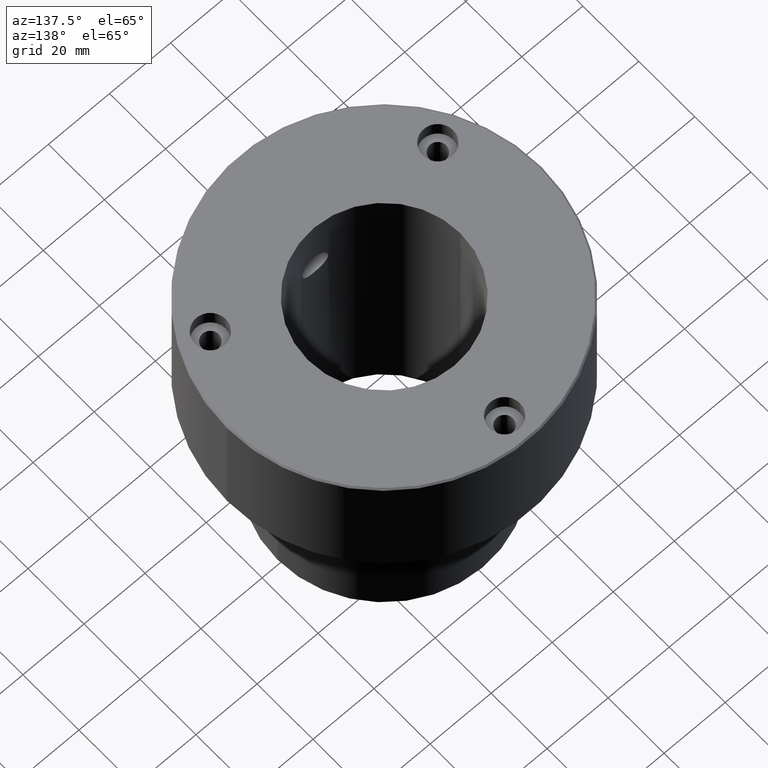
[diagram: clean part render]
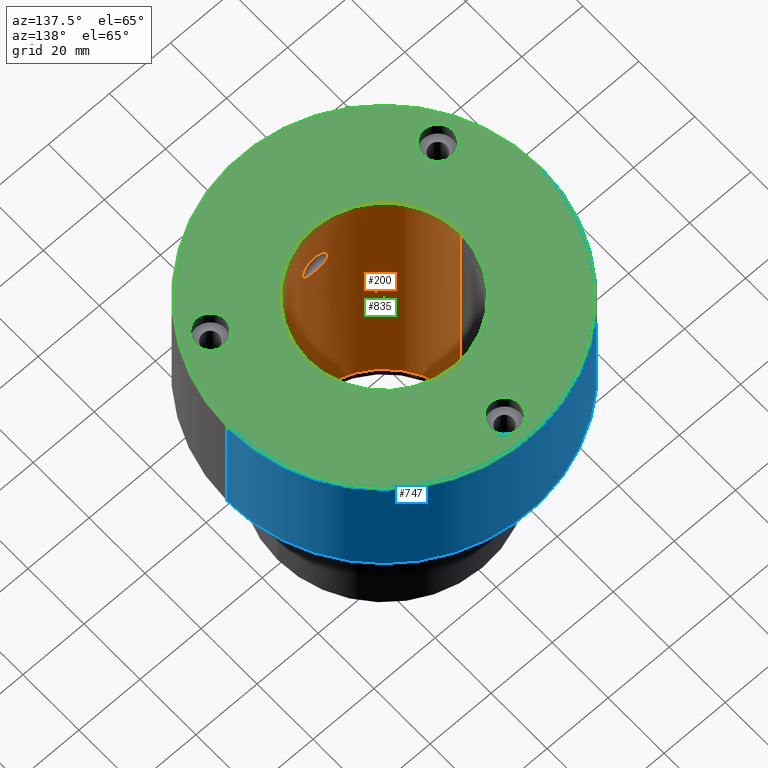
[diagram: same view with three faces highlighted in distinct colors, each labeled with its STEP entity id]
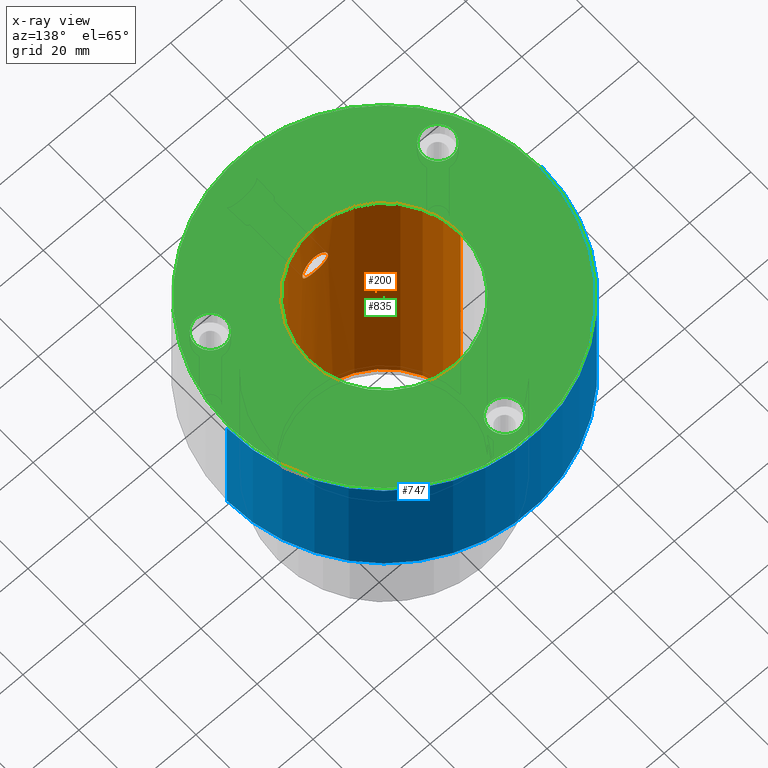
[diagram: x-ray of the same camera — body ghosted, the three highlighted faces saturated]
A machine part, auxiliary view with three faces highlighted in distinct colors.
The next image is the same camera in x-ray (body ghosted, the three faces saturated) — at least one of them is partly hidden behind the body in this view.
Their STEP definitions:

[orange] entity #200 — the highlighted cylindrical surface (partial cylindrical patch) has radius 25 mm, axis along (-0, -0, -1).
#2 = CARTESIAN_POINT ( 'NONE',  ( -2.573222320709973587, -24.86828951889739514, -17.89843385853933810 ) ) ;
#15 = CARTESIAN_POINT ( 'NONE',  ( -2.789602832603612637, -24.84464189656425859, -24.42354531606904899 ) ) ;
#18 = EDGE_CURVE ( 'NONE', #1164, #898, #1170, .T. ) ;
#59 = DIRECTION ( 'NONE',  ( 0.000000000000000000, 0.000000000000000000, -1.000000000000000000 ) ) ;
#69 = CARTESIAN_POINT ( 'NONE',  ( 0.000000000000000000, 0.000000000000000000, 0.000000000000000000 ) ) ;
#70 = CARTESIAN_POINT ( 'NONE',  ( 3.352582055017099272, -24.77466295798508256, -18.67832181482093290 ) ) ;
#71 = AXIS2_PLACEMENT_3D ( 'NONE', #1205, #59, #630 ) ;
#79 = DIRECTION ( 'NONE',  ( -0.000000000000000000, -0.000000000000000000, -1.000000000000000000 ) ) ;
#85 = CARTESIAN_POINT ( 'NONE',  ( 0.000000000000000000, -25.00000000000000000, -25.46640000000000725 ) ) ;
#111 = CARTESIAN_POINT ( 'NONE',  ( -3.177273416892531177, -24.79804525696520301, -24.03535589667136563 ) ) ;
#114 = DIRECTION ( 'NONE',  ( -0.000000000000000000, -0.000000000000000000, -1.000000000000000000 ) ) ;
#118 = CARTESIAN_POINT ( 'NONE',  ( -3.657551204455514959, -24.73148071308412455, -19.13436812954638810 ) ) ;
#183 = CARTESIAN_POINT ( 'NONE',  ( 5.163598754942028148E-16, -25.00000000000000000, -17.03359999999999630 ) ) ;
#200 = ADVANCED_FACE ( 'NONE', ( #457, #361 ), #1234, .F. ) ;
#209 = CARTESIAN_POINT ( 'NONE',  ( -4.001080031995797093, -24.67798176958861234, -22.60850050508463482 ) ) ;
#211 = LINE ( 'NONE', #984, #704 ) ;
#281 = CARTESIAN_POINT ( 'NONE',  ( 2.785149779739970022, -24.84516107233461923, -18.07225963039122973 ) ) ;
#289 = CARTESIAN_POINT ( 'NONE',  ( -3.789909672597093770, -24.71129317369161171, -23.11835481595592157 ) ) ;
#292 = CARTESIAN_POINT ( 'NONE',  ( 3.789420792215004052, -24.71136645075524996, -23.11914407841852892 ) ) ;
#296 = CARTESIAN_POINT ( 'NONE',  ( -4.080839073309147302, -24.66474678609008819, -20.15440089352773612 ) ) ;
#303 = CARTESIAN_POINT ( 'NONE',  ( -4.082358558956740602, -24.66449459381453835, -22.33999767720903762 ) ) ;
#306 = DIRECTION ( 'NONE',  ( -0.000000000000000000, -0.000000000000000000, -1.000000000000000000 ) ) ;
#307 = ORIENTED_EDGE ( 'NONE', *, *, #18, .T. ) ;
#308 = CARTESIAN_POINT ( 'NONE',  ( -4.188542541352179960, -24.64668523236889897, -20.69349633996487015 ) ) ;
#311 = B_SPLINE_CURVE_WITH_KNOTS ( 'NONE', 3,
 ( #609, #987, #979, #971, #965, #595, #1084, #2, #402, #393, #615, #118, #993, #1152, #296, #308, #699, #1078, #514, #303, #209, #289, #600, #686, #111, #15, #693, #893, #508, #407, #794, #413, #799, #1181 ),
 .UNSPECIFIED., .F., .F.,
 ( 4, 2, 2, 2, 2, 2, 2, 2, 2, 2, 2, 2, 2, 2, 2, 2, 4 ),
 ( 0.01320600312613960658, 0.01403117198375048932, 0.01485634084136137206, 0.01568150969897225480, 0.01650667855658313754, 0.01733184741419402028, 0.01815701627180490302, 0.01898218512941578576, 0.01980735398702666850, 0.02063252284463755123, 0.02145769170224843397, 0.02228286055985931671, 0.02310802941747019945, 0.02393319827508108219, 0.02475836713269196493, 0.02558353599030284767, 0.02640870484791373041 ),
 .UNSPECIFIED. ) ;
#361 = FACE_OUTER_BOUND ( 'NONE', #662, .T. ) ;
#366 = CARTESIAN_POINT ( 'NONE',  ( 2.571603499046061447, -24.86844906153570989, -24.60272099521346334 ) ) ;
#371 = DIRECTION ( 'NONE',  ( -1.000000000000000000, 0.000000000000000000, 0.000000000000000000 ) ) ;
#372 = CARTESIAN_POINT ( 'NONE',  ( 0.5534851188594950289, -24.99533014651275664, -25.43895744880870069 ) ) ;
#374 = VERTEX_POINT ( 'NONE', #403 ) ;
#378 = CARTESIAN_POINT ( 'NONE',  ( 1.093099341831749172, -24.97755009481224775, -25.33152472902171581 ) ) ;
#384 = CARTESIAN_POINT ( 'NONE',  ( 4.216294869757237329, -24.64189232957908970, -21.52716252381245710 ) ) ;
#386 = ORIENTED_EDGE ( 'NONE', *, *, #908, .F. ) ;
#393 = CARTESIAN_POINT ( 'NONE',  ( -3.174021241467367638, -24.79846643849410981, -18.46089050694146749 ) ) ;
#402 = CARTESIAN_POINT ( 'NONE',  ( -2.785157193346087023, -24.84514535982346217, -18.07251010797707735 ) ) ;
#403 = CARTESIAN_POINT ( 'NONE',  ( 5.163598754942028148E-16, -25.00000000000000000, -17.03359999999999630 ) ) ;
#407 = CARTESIAN_POINT ( 'NONE',  ( -1.365922125421332511, -24.96394961135199964, -25.24845676394320648 ) ) ;
#413 = CARTESIAN_POINT ( 'NONE',  ( -0.5546946996464188206, -24.99533018735855450, -25.43896704401492670 ) ) ;
#425 = CARTESIAN_POINT ( 'NONE',  ( 25.00000000000000000, 3.061616997868383043E-15, 0.000000000000000000 ) ) ;
#433 = ORIENTED_EDGE ( 'NONE', *, *, #552, .T. ) ;
#457 = FACE_BOUND ( 'NONE', #811, .T. ) ;
#486 = CARTESIAN_POINT ( 'NONE',  ( 4.189438460589419932, -24.64653377676202695, -21.80109762094440740 ) ) ;
#508 = CARTESIAN_POINT ( 'NONE',  ( -1.872884506012573613, -24.93104143588820776, -25.03757222676701488 ) ) ;
#511 = EDGE_CURVE ( 'NONE', #1164, #969, #1037, .T. ) ;
#514 = CARTESIAN_POINT ( 'NONE',  ( -4.189398213030527174, -24.64653905896020092, -21.80017174851593609 ) ) ;
#526 = VECTOR ( 'NONE', #306, 1000.000000000000000 ) ;
#552 = EDGE_CURVE ( 'NONE', #898, #1244, #958, .T. ) ;
#556 = CARTESIAN_POINT ( 'NONE',  ( -25.00000000000000000, 0.000000000000000000, 0.000000000000000000 ) ) ;
#562 = CARTESIAN_POINT ( 'NONE',  ( 3.176198147016892737, -24.79818488864249559, -24.03660333964332452 ) ) ;
#588 = CARTESIAN_POINT ( 'NONE',  ( 4.188953245402470493, -24.64661566191788467, -20.69608042869629827 ) ) ;
#595 = CARTESIAN_POINT ( 'NONE',  ( -1.867683453845454755, -24.93143433690384470, -17.45985074833685502 ) ) ;
#600 = CARTESIAN_POINT ( 'NONE',  ( -3.660610892758011214, -24.73102916298913811, -23.36044143906419990 ) ) ;
#609 = CARTESIAN_POINT ( 'NONE',  ( 5.163598754942028148E-16, -25.00000000000000000, -17.03359999999999630 ) ) ;
#615 = CARTESIAN_POINT ( 'NONE',  ( -3.351930816617768816, -24.77475285195544075, -18.67742564245439496 ) ) ;
#630 = DIRECTION ( 'NONE',  ( -1.000000000000000000, 0.000000000000000000, 0.000000000000000000 ) ) ;
#642 = CARTESIAN_POINT ( 'NONE',  ( 0.000000000000000000, 0.000000000000000000, 0.000000000000000000 ) ) ;
#654 = DIRECTION ( 'NONE',  ( -1.000000000000000000, 0.000000000000000000, 0.000000000000000000 ) ) ;
#662 = EDGE_LOOP ( 'NONE', ( #703, #307, #433, #386 ) ) ;
#670 = CARTESIAN_POINT ( 'NONE',  ( 2.572709684471875313, -24.86832656702240740, -17.89820541019203759 ) ) ;
#673 = CARTESIAN_POINT ( 'NONE',  ( 3.350546938136419683, -24.77494827881642081, -23.82462623794197043 ) ) ;
#686 = CARTESIAN_POINT ( 'NONE',  ( -3.354633329992206203, -24.77438820213534854, -23.81913806503335707 ) ) ;
#693 = CARTESIAN_POINT ( 'NONE',  ( -2.577720491008726800, -24.86783159792549469, -24.59820804518534487 ) ) ;
#699 = CARTESIAN_POINT ( 'NONE',  ( -4.216231918069407669, -24.64190310105671955, -20.96891348818029144 ) ) ;
#701 = CARTESIAN_POINT ( 'NONE',  ( 0.000000000000000000, -25.00000000000000000, -25.46640000000000725 ) ) ;
#702 = AXIS2_PLACEMENT_3D ( 'NONE', #642, #912, #654 ) ;
#703 = ORIENTED_EDGE ( 'NONE', *, *, #511, .F. ) ;
#704 = VECTOR ( 'NONE', #114, 1000.000000000000000 ) ;
#706 = CARTESIAN_POINT ( 'NONE',  ( -25.00000000000000000, 0.000000000000000000, -95.00000000000000000 ) ) ;
#723 = EDGE_CURVE ( 'NONE', #806, #374, #1089, .T. ) ;
#753 = CARTESIAN_POINT ( 'NONE',  ( 3.999816144338788071, -24.67818495383058419, -22.61193991712017137 ) ) ;
#766 = CARTESIAN_POINT ( 'NONE',  ( 4.001238937977825927, -24.67795725127592021, -19.89182722783715107 ) ) ;
#772 = CARTESIAN_POINT ( 'NONE',  ( 4.216504520080975205, -24.64185645691993543, -20.97604539521298861 ) ) ;
#778 = CARTESIAN_POINT ( 'NONE',  ( 2.113613258529830841, -24.91155439300947094, -24.90875957414777631 ) ) ;
#794 = CARTESIAN_POINT ( 'NONE',  ( -1.099253878684166130, -24.97730686633552821, -25.33004558992381661 ) ) ;
#799 = CARTESIAN_POINT ( 'NONE',  ( -0.2790545370033101769, -25.00000000000000355, -25.46640000000001436 ) ) ;
#806 = VERTEX_POINT ( 'NONE', #701 ) ;
#811 = EDGE_LOOP ( 'NONE', ( #1071, #1236 ) ) ;
#863 = CARTESIAN_POINT ( 'NONE',  ( 3.789500920088971547, -24.71135710379412487, -19.38071428227805271 ) ) ;
#868 = CARTESIAN_POINT ( 'NONE',  ( 4.081010666530438868, -24.66471921112831467, -22.34565283851284079 ) ) ;
#879 = AXIS2_PLACEMENT_3D ( 'NONE', #69, #79, #371 ) ;
#893 = CARTESIAN_POINT ( 'NONE',  ( -2.116339544248175830, -24.91133874856988228, -24.90735518880263655 ) ) ;
#898 = VERTEX_POINT ( 'NONE', #1074 ) ;
#908 = EDGE_CURVE ( 'NONE', #969, #1244, #211, .T. ) ;
#912 = DIRECTION ( 'NONE',  ( 0.000000000000000000, 0.000000000000000000, -1.000000000000000000 ) ) ;
#936 = CARTESIAN_POINT ( 'NONE',  ( 3.657636990639186791, -24.73146624771950641, -19.13457409289371114 ) ) ;
#947 = CARTESIAN_POINT ( 'NONE',  ( 25.00000000000000000, 3.061616997868383043E-15, 0.000000000000000000 ) ) ;
#950 = CARTESIAN_POINT ( 'NONE',  ( 3.177741575050738287, -24.79800488926540325, -18.46485159561991196 ) ) ;
#958 = CIRCLE ( 'NONE', #71, 25.00000000000000000 ) ;
#961 = CARTESIAN_POINT ( 'NONE',  ( 1.359562763135050645, -24.96431268227063427, -17.24926987722700034 ) ) ;
#965 = CARTESIAN_POINT ( 'NONE',  ( -1.360179360026400497, -24.96426589522861761, -17.24957690460009729 ) ) ;
#969 = VERTEX_POINT ( 'NONE', #556 ) ;
#971 = CARTESIAN_POINT ( 'NONE',  ( -1.094777242392741323, -24.97750782868677177, -17.16872763357598330 ) ) ;
#979 = CARTESIAN_POINT ( 'NONE',  ( -0.5494184517092979281, -24.99545106429351193, -17.06031496358990296 ) ) ;
#984 = CARTESIAN_POINT ( 'NONE',  ( -25.00000000000000000, 0.000000000000000000, 0.000000000000000000 ) ) ;
#987 = CARTESIAN_POINT ( 'NONE',  ( -0.2753736551646883135, -24.99999999999999645, -17.03359999999999275 ) ) ;
#993 = CARTESIAN_POINT ( 'NONE',  ( -3.787263450962607969, -24.71170153888022369, -19.37617669261775077 ) ) ;
#1030 = CARTESIAN_POINT ( 'NONE',  ( 2.788049844071097016, -24.84481810171661564, -24.42492848873796518 ) ) ;
#1037 = CIRCLE ( 'NONE', #702, 25.00000000000000000 ) ;
#1048 = CARTESIAN_POINT ( 'NONE',  ( 0.5552478292391550552, -24.99530098410326318, -17.06121199652787723 ) ) ;
#1052 = CARTESIAN_POINT ( 'NONE',  ( 1.869645711962733881, -24.93130047784954328, -17.46071545883578935 ) ) ;
#1071 = ORIENTED_EDGE ( 'NONE', *, *, #723, .T. ) ;
#1074 = CARTESIAN_POINT ( 'NONE',  ( 25.00000000000000000, 3.061616997868383043E-15, -95.00000000000000000 ) ) ;
#1078 = CARTESIAN_POINT ( 'NONE',  ( -4.216566560592522883, -24.64184584135102796, -21.52602111181422728 ) ) ;
#1084 = CARTESIAN_POINT ( 'NONE',  ( -2.113533608170574674, -24.91156904722453902, -17.59111432270438513 ) ) ;
#1089 = B_SPLINE_CURVE_WITH_KNOTS ( 'NONE', 3,
 ( #85, #1247, #372, #378, #1229, #1239, #778, #366, #1030, #562, #673, #1155, #292, #753, #868, #486, #384, #772, #588, #1252, #766, #863, #936, #70, #950, #281, #670, #1149, #1052, #961, #1138, #1048, #1132, #183 ),
 .UNSPECIFIED., .F., .F.,
 ( 4, 2, 2, 2, 2, 2, 2, 2, 2, 2, 2, 2, 2, 2, 2, 2, 4 ),
 ( 0.000000000000000000, 0.0008253751953837256284, 0.001650750390767451257, 0.002476125586151177102, 0.003301500781534902514, 0.004126875976918627925, 0.004952251172302354204, 0.005777626367686078748, 0.006603001563069803292, 0.007428376758453528704, 0.008253751953837254116, 0.009079127149220978660, 0.009904502344604704939, 0.01072987753998843122, 0.01155525273537215750, 0.01238062793075588204, 0.01320600312613960658 ),
 .UNSPECIFIED. ) ;
#1132 = CARTESIAN_POINT ( 'NONE',  ( 0.2754425137821490122, -24.99999999999999645, -17.03359999999999275 ) ) ;
#1138 = CARTESIAN_POINT ( 'NONE',  ( 1.096695326180635810, -24.97740240295859593, -17.16937450242730634 ) ) ;
#1149 = CARTESIAN_POINT ( 'NONE',  ( 2.116465903479380906, -24.91130412973308239, -17.59296101029117665 ) ) ;
#1152 = CARTESIAN_POINT ( 'NONE',  ( -3.999650605956602156, -24.67821615157715343, -19.88714517847382268 ) ) ;
#1155 = CARTESIAN_POINT ( 'NONE',  ( 3.658773400904637541, -24.73130817816795002, -23.36382171684068609 ) ) ;
#1164 = VERTEX_POINT ( 'NONE', #947 ) ;
#1170 = LINE ( 'NONE', #425, #526 ) ;
#1181 = CARTESIAN_POINT ( 'NONE',  ( 0.000000000000000000, -25.00000000000000000, -25.46640000000000725 ) ) ;
#1205 = CARTESIAN_POINT ( 'NONE',  ( 0.000000000000000000, 0.000000000000000000, -95.00000000000000000 ) ) ;
#1229 = CARTESIAN_POINT ( 'NONE',  ( 1.361186421366149313, -24.96422595710813042, -25.25019430947453714 ) ) ;
#1233 = EDGE_CURVE ( 'NONE', #374, #806, #311, .T. ) ;
#1234 = CYLINDRICAL_SURFACE ( 'NONE', #879, 25.00000000000000000 ) ;
#1236 = ORIENTED_EDGE ( 'NONE', *, *, #1233, .T. ) ;
#1239 = CARTESIAN_POINT ( 'NONE',  ( 1.871608554563108040, -24.93115495779827739, -25.03833266830545767 ) ) ;
#1244 = VERTEX_POINT ( 'NONE', #706 ) ;
#1247 = CARTESIAN_POINT ( 'NONE',  ( 0.2791243160444553117, -25.00000000000000000, -25.46640000000000725 ) ) ;
#1252 = CARTESIAN_POINT ( 'NONE',  ( 4.081045843858354338, -24.66471280389840715, -20.15491050412871488 ) ) ;

[blue] entity #747 — the highlighted cylindrical surface (partial cylindrical patch) has radius 51.5 mm, axis along (-0, -0, 1).
#9 = DIRECTION ( 'NONE',  ( 0.000000000000000000, 0.000000000000000000, -1.000000000000000000 ) ) ;
#76 = DIRECTION ( 'NONE',  ( 1.000000000000000000, 0.000000000000000000, 0.000000000000000000 ) ) ;
#172 = CARTESIAN_POINT ( 'NONE',  ( 0.000000000000000000, 0.000000000000000000, 0.000000000000000000 ) ) ;
#173 = VECTOR ( 'NONE', #749, 1000.000000000000000 ) ;
#184 = ORIENTED_EDGE ( 'NONE', *, *, #226, .F. ) ;
#208 = EDGE_CURVE ( 'NONE', #282, #401, #1098, .T. ) ;
#226 = EDGE_CURVE ( 'NONE', #282, #1104, #1221, .T. ) ;
#282 = VERTEX_POINT ( 'NONE', #756 ) ;
#284 = CARTESIAN_POINT ( 'NONE',  ( 51.50000000000000000, 0.000000000000000000, -0.5000000000000004441 ) ) ;
#315 = EDGE_CURVE ( 'NONE', #419, #1104, #1140, .T. ) ;
#335 = AXIS2_PLACEMENT_3D ( 'NONE', #1127, #485, #837 ) ;
#401 = VERTEX_POINT ( 'NONE', #408 ) ;
#408 = CARTESIAN_POINT ( 'NONE',  ( -51.50000000000000000, 6.306931015608868807E-15, -42.00000000000000000 ) ) ;
#414 = CARTESIAN_POINT ( 'NONE',  ( -51.50000000000000000, 6.306931015608868807E-15, -0.5000000000000004441 ) ) ;
#419 = VERTEX_POINT ( 'NONE', #414 ) ;
#475 = EDGE_LOOP ( 'NONE', ( #773, #656, #992, #184 ) ) ;
#478 = CARTESIAN_POINT ( 'NONE',  ( 51.50000000000000000, 0.000000000000000000, 0.000000000000000000 ) ) ;
#485 = DIRECTION ( 'NONE',  ( -0.000000000000000000, -0.000000000000000000, 1.000000000000000000 ) ) ;
#492 = CYLINDRICAL_SURFACE ( 'NONE', #1217, 51.50000000000000000 ) ;
#559 = EDGE_CURVE ( 'NONE', #401, #419, #1026, .T. ) ;
#656 = ORIENTED_EDGE ( 'NONE', *, *, #559, .T. ) ;
#659 = FACE_OUTER_BOUND ( 'NONE', #475, .T. ) ;
#747 = ADVANCED_FACE ( 'NONE', ( #659 ), #492, .T. ) ;
#749 = DIRECTION ( 'NONE',  ( -0.000000000000000000, -0.000000000000000000, 1.000000000000000000 ) ) ;
#756 = CARTESIAN_POINT ( 'NONE',  ( 51.50000000000000000, 0.000000000000000000, -42.00000000000000000 ) ) ;
#762 = AXIS2_PLACEMENT_3D ( 'NONE', #867, #9, #1073 ) ;
#773 = ORIENTED_EDGE ( 'NONE', *, *, #208, .T. ) ;
#837 = DIRECTION ( 'NONE',  ( 1.000000000000000000, 0.000000000000000000, 0.000000000000000000 ) ) ;
#867 = CARTESIAN_POINT ( 'NONE',  ( 0.000000000000000000, 0.000000000000000000, -0.5000000000000004441 ) ) ;
#916 = CARTESIAN_POINT ( 'NONE',  ( -51.50000000000000000, 6.306931015608868807E-15, 0.000000000000000000 ) ) ;
#944 = DIRECTION ( 'NONE',  ( -0.000000000000000000, -0.000000000000000000, 1.000000000000000000 ) ) ;
#955 = DIRECTION ( 'NONE',  ( -0.000000000000000000, -0.000000000000000000, 1.000000000000000000 ) ) ;
#980 = VECTOR ( 'NONE', #955, 1000.000000000000000 ) ;
#992 = ORIENTED_EDGE ( 'NONE', *, *, #315, .T. ) ;
#1026 = LINE ( 'NONE', #916, #173 ) ;
#1073 = DIRECTION ( 'NONE',  ( 1.000000000000000000, 0.000000000000000000, 0.000000000000000000 ) ) ;
#1098 = CIRCLE ( 'NONE', #335, 51.50000000000000000 ) ;
#1104 = VERTEX_POINT ( 'NONE', #284 ) ;
#1127 = CARTESIAN_POINT ( 'NONE',  ( 0.000000000000000000, 0.000000000000000000, -42.00000000000000000 ) ) ;
#1140 = CIRCLE ( 'NONE', #762, 51.50000000000000000 ) ;
#1217 = AXIS2_PLACEMENT_3D ( 'NONE', #172, #944, #76 ) ;
#1221 = LINE ( 'NONE', #478, #980 ) ;

[green] entity #835 — the highlighted planar face has unit normal (0, -0, 1).
#4 = FACE_BOUND ( 'NONE', #288, .T. ) ;
#13 = EDGE_LOOP ( 'NONE', ( #406, #294 ) ) ;
#48 = AXIS2_PLACEMENT_3D ( 'NONE', #1029, #383, #561 ) ;
#51 = CIRCLE ( 'NONE', #89, 5.000000000000000888 ) ;
#72 = AXIS2_PLACEMENT_3D ( 'NONE', #890, #1175, #516 ) ;
#78 = CARTESIAN_POINT ( 'NONE',  ( 32.23909236273075862, -21.50000000000015987, 0.000000000000000000 ) ) ;
#87 = ORIENTED_EDGE ( 'NONE', *, *, #1077, .F. ) ;
#89 = AXIS2_PLACEMENT_3D ( 'NONE', #1062, #310, #597 ) ;
#90 = ORIENTED_EDGE ( 'NONE', *, *, #655, .F. ) ;
#98 = CARTESIAN_POINT ( 'NONE',  ( -51.00000000000001421, 0.000000000000000000, 0.000000000000000000 ) ) ;
#99 = CARTESIAN_POINT ( 'NONE',  ( 0.000000000000000000, 0.000000000000000000, 0.000000000000000000 ) ) ;
#101 = ORIENTED_EDGE ( 'NONE', *, *, #933, .F. ) ;
#105 = FACE_BOUND ( 'NONE', #342, .T. ) ;
#132 = AXIS2_PLACEMENT_3D ( 'NONE', #658, #359, #652 ) ;
#139 = DIRECTION ( 'NONE',  ( 1.000000000000000000, 0.000000000000000000, 0.000000000000000000 ) ) ;
#158 = ORIENTED_EDGE ( 'NONE', *, *, #293, .T. ) ;
#161 = EDGE_CURVE ( 'NONE', #581, #1216, #191, .T. ) ;
#164 = DIRECTION ( 'NONE',  ( 1.000000000000000000, 0.000000000000000000, 0.000000000000000000 ) ) ;
#168 = CIRCLE ( 'NONE', #132, 5.000000000000004441 ) ;
#170 = CIRCLE ( 'NONE', #356, 51.00000000000001421 ) ;
#182 = EDGE_CURVE ( 'NONE', #1225, #469, #170, .T. ) ;
#191 = CIRCLE ( 'NONE', #722, 5.000000000000004441 ) ;
#196 = CARTESIAN_POINT ( 'NONE',  ( -42.23909236273090784, -21.49999999999991118, 0.000000000000000000 ) ) ;
#220 = DIRECTION ( 'NONE',  ( 1.000000000000000000, 0.000000000000000000, 0.000000000000000000 ) ) ;
#262 = EDGE_CURVE ( 'NONE', #469, #1225, #358, .T. ) ;
#267 = DIRECTION ( 'NONE',  ( 1.000000000000000000, 0.000000000000000000, 0.000000000000000000 ) ) ;
#285 = DIRECTION ( 'NONE',  ( 0.000000000000000000, 0.000000000000000000, -1.000000000000000000 ) ) ;
#288 = EDGE_LOOP ( 'NONE', ( #302, #87 ) ) ;
#293 = EDGE_CURVE ( 'NONE', #969, #1164, #484, .T. ) ;
#294 = ORIENTED_EDGE ( 'NONE', *, *, #182, .T. ) ;
#302 = ORIENTED_EDGE ( 'NONE', *, *, #161, .F. ) ;
#310 = DIRECTION ( 'NONE',  ( -0.000000000000000000, -0.000000000000000000, 1.000000000000000000 ) ) ;
#329 = CARTESIAN_POINT ( 'NONE',  ( -5.000000000000000888, 43.00000000000000000, 0.000000000000000000 ) ) ;
#342 = EDGE_LOOP ( 'NONE', ( #158, #754 ) ) ;
#356 = AXIS2_PLACEMENT_3D ( 'NONE', #765, #771, #164 ) ;
#358 = CIRCLE ( 'NONE', #48, 51.00000000000001421 ) ;
#359 = DIRECTION ( 'NONE',  ( -0.000000000000000000, -0.000000000000000000, 1.000000000000000000 ) ) ;
#365 = DIRECTION ( 'NONE',  ( -0.000000000000000000, -0.000000000000000000, 1.000000000000000000 ) ) ;
#383 = DIRECTION ( 'NONE',  ( -0.000000000000000000, -0.000000000000000000, 1.000000000000000000 ) ) ;
#406 = ORIENTED_EDGE ( 'NONE', *, *, #262, .T. ) ;
#415 = DIRECTION ( 'NONE',  ( 0.000000000000000000, -0.000000000000000000, 1.000000000000000000 ) ) ;
#445 = CIRCLE ( 'NONE', #72, 5.000000000000004441 ) ;
#465 = CIRCLE ( 'NONE', #839, 5.000000000000004441 ) ;
#469 = VERTEX_POINT ( 'NONE', #98 ) ;
#484 = CIRCLE ( 'NONE', #1058, 25.00000000000000000 ) ;
#505 = VERTEX_POINT ( 'NONE', #1210 ) ;
#511 = EDGE_CURVE ( 'NONE', #1164, #969, #1037, .T. ) ;
#516 = DIRECTION ( 'NONE',  ( 1.000000000000000000, 0.000000000000000000, 0.000000000000000000 ) ) ;
#518 = VERTEX_POINT ( 'NONE', #650 ) ;
#522 = AXIS2_PLACEMENT_3D ( 'NONE', #99, #415, #220 ) ;
#556 = CARTESIAN_POINT ( 'NONE',  ( -25.00000000000000000, 0.000000000000000000, 0.000000000000000000 ) ) ;
#561 = DIRECTION ( 'NONE',  ( 1.000000000000000000, 0.000000000000000000, 0.000000000000000000 ) ) ;
#580 = ORIENTED_EDGE ( 'NONE', *, *, #782, .F. ) ;
#581 = VERTEX_POINT ( 'NONE', #727 ) ;
#586 = CIRCLE ( 'NONE', #1001, 5.000000000000000888 ) ;
#596 = DIRECTION ( 'NONE',  ( -1.000000000000000000, 0.000000000000000000, 0.000000000000000000 ) ) ;
#597 = DIRECTION ( 'NONE',  ( 1.000000000000000000, 0.000000000000000000, 0.000000000000000000 ) ) ;
#604 = FACE_BOUND ( 'NONE', #735, .T. ) ;
#642 = CARTESIAN_POINT ( 'NONE',  ( 0.000000000000000000, 0.000000000000000000, 0.000000000000000000 ) ) ;
#650 = CARTESIAN_POINT ( 'NONE',  ( 5.000000000000000888, 43.00000000000000000, 0.000000000000000000 ) ) ;
#652 = DIRECTION ( 'NONE',  ( 1.000000000000000000, 0.000000000000000000, 0.000000000000000000 ) ) ;
#654 = DIRECTION ( 'NONE',  ( -1.000000000000000000, 0.000000000000000000, 0.000000000000000000 ) ) ;
#655 = EDGE_CURVE ( 'NONE', #518, #1043, #586, .T. ) ;
#658 = CARTESIAN_POINT ( 'NONE',  ( -37.23909236273090073, -21.49999999999991118, 0.000000000000000000 ) ) ;
#695 = FACE_OUTER_BOUND ( 'NONE', #13, .T. ) ;
#702 = AXIS2_PLACEMENT_3D ( 'NONE', #642, #912, #654 ) ;
#713 = DIRECTION ( 'NONE',  ( 1.000000000000000000, 0.000000000000000000, 0.000000000000000000 ) ) ;
#722 = AXIS2_PLACEMENT_3D ( 'NONE', #935, #365, #267 ) ;
#727 = CARTESIAN_POINT ( 'NONE',  ( -32.23909236273090073, -21.49999999999991118, 0.000000000000000000 ) ) ;
#735 = EDGE_LOOP ( 'NONE', ( #90, #580 ) ) ;
#754 = ORIENTED_EDGE ( 'NONE', *, *, #511, .T. ) ;
#765 = CARTESIAN_POINT ( 'NONE',  ( 0.000000000000000000, 0.000000000000000000, 0.000000000000000000 ) ) ;
#767 = EDGE_LOOP ( 'NONE', ( #101, #1230 ) ) ;
#771 = DIRECTION ( 'NONE',  ( -0.000000000000000000, -0.000000000000000000, 1.000000000000000000 ) ) ;
#782 = EDGE_CURVE ( 'NONE', #1043, #518, #51, .T. ) ;
#810 = PLANE ( 'NONE',  #522 ) ;
#829 = CARTESIAN_POINT ( 'NONE',  ( 0.000000000000000000, 43.00000000000000000, 0.000000000000000000 ) ) ;
#835 = ADVANCED_FACE ( 'NONE', ( #4, #967, #604, #105, #695 ), #810, .T. ) ;
#839 = AXIS2_PLACEMENT_3D ( 'NONE', #1013, #911, #713 ) ;
#871 = CARTESIAN_POINT ( 'NONE',  ( 51.00000000000001421, 6.276314845630186598E-15, 0.000000000000000000 ) ) ;
#890 = CARTESIAN_POINT ( 'NONE',  ( 37.23909236273076573, -21.50000000000015987, 0.000000000000000000 ) ) ;
#911 = DIRECTION ( 'NONE',  ( -0.000000000000000000, -0.000000000000000000, 1.000000000000000000 ) ) ;
#912 = DIRECTION ( 'NONE',  ( 0.000000000000000000, 0.000000000000000000, -1.000000000000000000 ) ) ;
#914 = EDGE_CURVE ( 'NONE', #1166, #505, #445, .T. ) ;
#933 = EDGE_CURVE ( 'NONE', #505, #1166, #465, .T. ) ;
#935 = CARTESIAN_POINT ( 'NONE',  ( -37.23909236273090073, -21.49999999999991118, 0.000000000000000000 ) ) ;
#947 = CARTESIAN_POINT ( 'NONE',  ( 25.00000000000000000, 3.061616997868383043E-15, 0.000000000000000000 ) ) ;
#967 = FACE_BOUND ( 'NONE', #767, .T. ) ;
#969 = VERTEX_POINT ( 'NONE', #556 ) ;
#1001 = AXIS2_PLACEMENT_3D ( 'NONE', #829, #1222, #139 ) ;
#1013 = CARTESIAN_POINT ( 'NONE',  ( 37.23909236273076573, -21.50000000000015987, 0.000000000000000000 ) ) ;
#1029 = CARTESIAN_POINT ( 'NONE',  ( 0.000000000000000000, 0.000000000000000000, 0.000000000000000000 ) ) ;
#1037 = CIRCLE ( 'NONE', #702, 25.00000000000000000 ) ;
#1043 = VERTEX_POINT ( 'NONE', #329 ) ;
#1058 = AXIS2_PLACEMENT_3D ( 'NONE', #1137, #285, #596 ) ;
#1062 = CARTESIAN_POINT ( 'NONE',  ( 0.000000000000000000, 43.00000000000000000, 0.000000000000000000 ) ) ;
#1077 = EDGE_CURVE ( 'NONE', #1216, #581, #168, .T. ) ;
#1137 = CARTESIAN_POINT ( 'NONE',  ( 0.000000000000000000, 0.000000000000000000, 0.000000000000000000 ) ) ;
#1164 = VERTEX_POINT ( 'NONE', #947 ) ;
#1166 = VERTEX_POINT ( 'NONE', #78 ) ;
#1175 = DIRECTION ( 'NONE',  ( -0.000000000000000000, -0.000000000000000000, 1.000000000000000000 ) ) ;
#1210 = CARTESIAN_POINT ( 'NONE',  ( 42.23909236273076573, -21.50000000000015987, 0.000000000000000000 ) ) ;
#1216 = VERTEX_POINT ( 'NONE', #196 ) ;
#1222 = DIRECTION ( 'NONE',  ( -0.000000000000000000, -0.000000000000000000, 1.000000000000000000 ) ) ;
#1225 = VERTEX_POINT ( 'NONE', #871 ) ;
#1230 = ORIENTED_EDGE ( 'NONE', *, *, #914, .F. ) ;